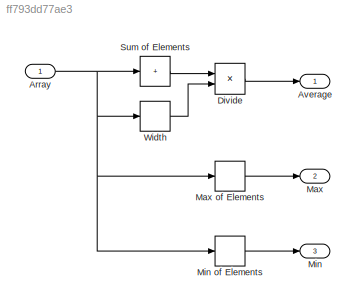
MODEL slx_ff793dd77ae3
KIND model
CONFIG AbsTol = auto
CONFIG EnableMultiTasking = off
CONFIG FixedStep = auto
CONFIG MaxStep = auto
CONFIG MinStep = auto
CONFIG RelTol = 1e-3
CONFIG SampleTimeConstraint = Unconstrained
CONFIG SolverName = FixedStepDiscrete
CONFIG StartTime = 0.0
CONFIG StopTime = 10.0
BLOCK [Inport] Array
  OutDataTypeStr = double
  PortDimensions = 9
BLOCK [Outport] Average
BLOCK [Product] Divide
  Inputs = */
  Ports = [2, 1]
BLOCK [Outport] Max
  Port = 2
BLOCK [MinMax] Max of Elements
  Function = max
  Ports = [1, 1]
BLOCK [Outport] Min
  Port = 3
BLOCK [MinMax] Min of Elements
  Ports = [1, 1]
BLOCK [Sum] Sum of Elements
  IconShape = rectangular
  Inputs = +
  Ports = [1, 1]
BLOCK [Width] Width
NET Array:1 -> Max of Elements:1, Min of Elements:1, Sum of Elements:1, Width:1
LINE Divide:1 -> Average:1
LINE Max of Elements:1 -> Max:1
LINE Min of Elements:1 -> Min:1
LINE Sum of Elements:1 -> Divide:1
LINE Width:1 -> Divide:2
note: NET lines group one-source signal fan-out (src -> all destinations, sorted); 1:1 wires keep LINE
